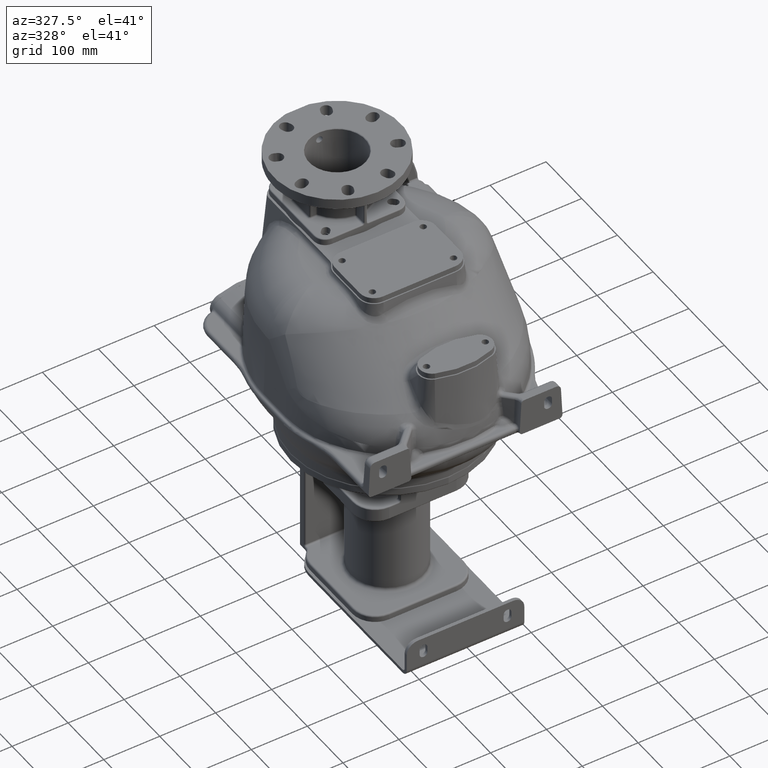
[diagram: clean part render]
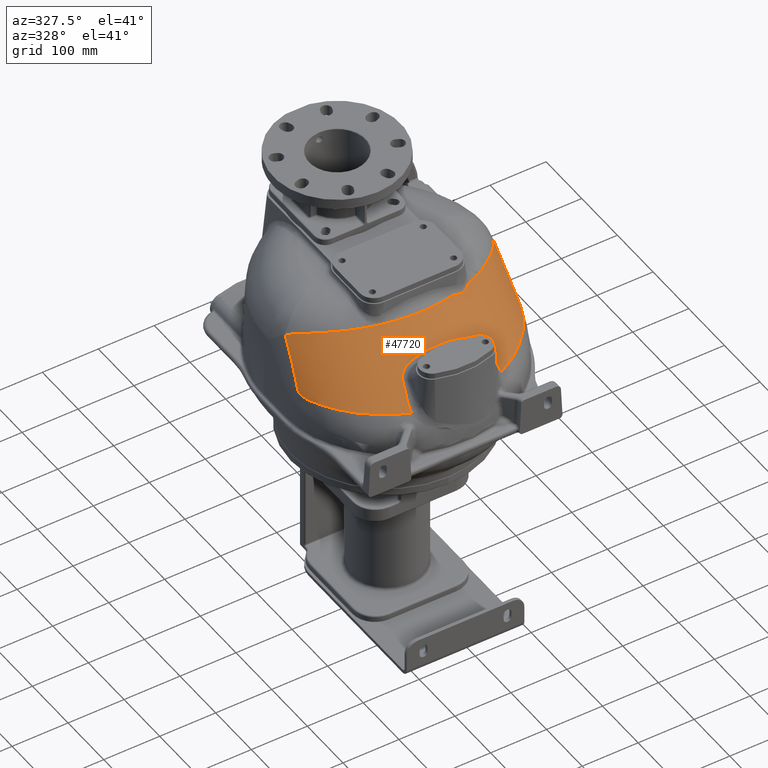
[diagram: same view with one face highlighted and labeled with its STEP entity id]
A machine part, auxiliary view. The second image highlights one B-rep face of the part: STEP entity #47720.
In plain terms, the highlighted face is a SurfaceOfExtrusion surface.
Its self-contained STEP definition (entity closure, byte-faithful):
#12614=CARTESIAN_POINT('',(-4.330793040691E1,5.269792538880E1,
3.894829784975E1));
#12697=CARTESIAN_POINT('',(2.354049095724E2,2.655411247039E2,1.046796360938E2));
#12698=CARTESIAN_POINT('',(2.341952911277E2,2.624349846678E2,1.061835365726E2));
#12699=CARTESIAN_POINT('',(2.313103218916E2,2.556278643053E2,1.092036920280E2));
#12700=CARTESIAN_POINT('',(2.252428511276E2,2.444873110225E2,1.142380757694E2));
#12701=CARTESIAN_POINT('',(2.171855143271E2,2.323897752123E2,1.190961902192E2));
#12702=CARTESIAN_POINT('',(2.072578235522E2,2.197692211890E2,1.233576562142E2));
#12703=CARTESIAN_POINT('',(1.955855274808E2,2.074124018436E2,1.272924040654E2));
#12704=CARTESIAN_POINT('',(1.821177484183E2,1.953615090553E2,1.306828517420E2));
#12705=CARTESIAN_POINT('',(1.672456618023E2,1.840211426404E2,1.334183521529E2));
#12706=CARTESIAN_POINT('',(1.494064886521E2,1.726442142024E2,1.359509156367E2));
#12707=CARTESIAN_POINT('',(1.347834457039E2,1.651763349081E2,1.374009542062E2));
#12708=CARTESIAN_POINT('',(1.270398941876E2,1.617612326784E2,1.380438431355E2));
#12710=CARTESIAN_POINT('',(2.403456481725E2,2.555571718179E2,7.018799807427E1));
#12711=CARTESIAN_POINT('',(2.403573231207E2,2.560436740533E2,7.059285675649E1));
#12712=CARTESIAN_POINT('',(2.403606888328E2,2.569946607360E2,7.152012690575E1));
#12713=CARTESIAN_POINT('',(2.402933340313E2,2.583451058563E2,7.334224865569E1));
#12714=CARTESIAN_POINT('',(2.401538399150E2,2.595388394756E2,7.548989233552E1));
#12715=CARTESIAN_POINT('',(2.399538736037E2,2.606715700106E2,7.794638437836E1));
#12716=CARTESIAN_POINT('',(2.396524214748E2,2.616000584730E2,8.078405981539E1));
#12717=CARTESIAN_POINT('',(2.392301789809E2,2.622947973458E2,8.398721961591E1));
#12718=CARTESIAN_POINT('',(2.386872500639E2,2.628198561910E2,8.749300430039E1));
#12719=CARTESIAN_POINT('',(2.380447536423E2,2.633766951107E2,9.129244856049E1));
#12720=CARTESIAN_POINT('',(2.373081829025E2,2.640415788200E2,9.539122219879E1));
#12721=CARTESIAN_POINT('',(2.364327212946E2,2.647021968633E2,9.981895904196E1));
#12722=CARTESIAN_POINT('',(2.357604812785E2,2.652378211154E2,1.030211975657E2));
#12723=CARTESIAN_POINT('',(2.354049095724E2,2.655411247039E2,1.046796360938E2));
#12725=CARTESIAN_POINT('',(1.206630588015E2,5.935095692017E1,3.883885427940E1));
#12726=CARTESIAN_POINT('',(1.284206497381E2,6.303687822916E1,3.878980001829E1));
#12727=CARTESIAN_POINT('',(1.428932829666E2,7.113255778590E1,3.871461399734E1));
#12728=CARTESIAN_POINT('',(1.604543662554E2,8.349361780553E1,3.845993988203E1));
#12729=CARTESIAN_POINT('',(1.748424694460E2,9.582166936495E1,3.824264474816E1));
#12730=CARTESIAN_POINT('',(1.866325046802E2,1.074654721636E2,3.775451161953E1));
#12731=CARTESIAN_POINT('',(1.962564586848E2,1.184639577875E2,3.722036608610E1));
#12732=CARTESIAN_POINT('',(2.042049812328E2,1.286772606631E2,3.653125333414E1));
#12733=CARTESIAN_POINT('',(2.106845860944E2,1.381941569149E2,3.594986918500E1));
#12734=CARTESIAN_POINT('',(2.160258992191E2,1.469853879629E2,3.542684045500E1));
#12735=CARTESIAN_POINT('',(2.204791425670E2,1.550425238560E2,3.479491717918E1));
#12736=CARTESIAN_POINT('',(2.241480470801E2,1.624551709012E2,3.423973069760E1));
#12737=CARTESIAN_POINT('',(2.272223032249E2,1.692292878300E2,3.359120310151E1));
#12738=CARTESIAN_POINT('',(2.297236001973E2,1.754729424963E2,3.313490614468E1));
#12739=CARTESIAN_POINT('',(2.317588641824E2,1.812179844996E2,3.288258925487E1));
#12740=CARTESIAN_POINT('',(2.334082764040E2,1.865025062642E2,3.284224347427E1));
#12741=CARTESIAN_POINT('',(2.346894325464E2,1.913181906323E2,3.316652904295E1));
#12742=CARTESIAN_POINT('',(2.356993535174E2,1.956222085812E2,3.366614187029E1));
#12743=CARTESIAN_POINT('',(2.364974556732E2,1.994978416948E2,3.432287383319E1));
#12744=CARTESIAN_POINT('',(2.370844733840E2,2.029048477606E2,3.521237067854E1));
#12745=CARTESIAN_POINT('',(2.374554326353E2,2.058065406452E2,3.645219118320E1));
#12746=CARTESIAN_POINT('',(2.377843360771E2,2.091272985648E2,3.825130266061E1));
#12747=CARTESIAN_POINT('',(2.380721025647E2,2.126771045631E2,4.042322147144E1));
#12748=CARTESIAN_POINT('',(2.383592749128E2,2.165140423627E2,4.284176642291E1));
#12749=CARTESIAN_POINT('',(2.386899362767E2,2.207876410198E2,4.541764868247E1));
#12750=CARTESIAN_POINT('',(2.390396909403E2,2.254420838383E2,4.818644693770E1));
#12751=CARTESIAN_POINT('',(2.393755415020E2,2.304973281159E2,5.133136661561E1));
#12752=CARTESIAN_POINT('',(2.396818128142E2,2.359954601885E2,5.499075538280E1));
#12753=CARTESIAN_POINT('',(2.399455279331E2,2.419805989591E2,5.930860240794E1));
#12754=CARTESIAN_POINT('',(2.401583599067E2,2.484424799117E2,6.436607331545E1));
#12755=CARTESIAN_POINT('',(2.402877480411E2,2.531302981047E2,6.816594226485E1));
#12756=CARTESIAN_POINT('',(2.403456481725E2,2.555571718179E2,7.018799807427E1));
#12758=CARTESIAN_POINT('',(1.206630588015E2,5.935095692017E1,3.883885427940E1));
#12759=CARTESIAN_POINT('',(1.206921145271E2,6.025158057541E1,3.972550088868E1));
#12760=CARTESIAN_POINT('',(1.206257993812E2,6.207794756711E1,4.158382473456E1));
#12761=CARTESIAN_POINT('',(1.201473792668E2,6.490410183753E1,4.463990353816E1));
#12762=CARTESIAN_POINT('',(1.195998906942E2,6.682958624371E1,4.682588686175E1));
#12763=CARTESIAN_POINT('',(1.1928587E2,6.781258839596E1,4.795732024050E1));
#12765=CARTESIAN_POINT('',(1.1928587E2,6.781258839596E1,4.795732024050E1));
#12766=CARTESIAN_POINT('',(1.185489789154E2,7.012125778546E1,5.061411889464E1));
#12767=CARTESIAN_POINT('',(1.171097192380E2,7.465850288234E1,5.582041747929E1));
#12768=CARTESIAN_POINT('',(1.152354845158E2,8.131440108578E1,6.332265618392E1));
#12769=CARTESIAN_POINT('',(1.142945202409E2,8.563455364962E1,6.805771041203E1));
#12770=CARTESIAN_POINT('',(1.139198078380E2,8.777296339332E1,7.036033439793E1));
#12772=CARTESIAN_POINT('',(1.139198078380E2,8.777296339332E1,7.036033439793E1));
#12773=CARTESIAN_POINT('',(1.136742205425E2,8.917431609496E1,7.186932554306E1));
#12774=CARTESIAN_POINT('',(1.128192565696E2,9.174686455492E1,7.481583977755E1));
#12775=CARTESIAN_POINT('',(1.105639590104E2,9.494391108950E1,7.897469540695E1));
#12776=CARTESIAN_POINT('',(1.073061829838E2,9.760146755205E1,8.296714088832E1));
#12777=CARTESIAN_POINT('',(1.029540174377E2,9.972124696182E1,8.677350012534E1));
#12778=CARTESIAN_POINT('',(9.733604506070E1,1.012480672912E2,9.031486646807E1));
#12779=CARTESIAN_POINT('',(9.282214043337E1,1.017795247099E2,9.230736565285E1));
#12780=CARTESIAN_POINT('',(9.034276424315E1,1.019059891427E2,9.318196966542E1));
#12782=CARTESIAN_POINT('',(9.034276424315E1,1.019059891427E2,9.318196966542E1));
#12783=CARTESIAN_POINT('',(8.429492950793E1,1.022143581314E2,9.531524295902E1));
#12784=CARTESIAN_POINT('',(7.224132316175E1,1.026434454025E2,9.877861197740E1));
#12785=CARTESIAN_POINT('',(5.466561107647E1,1.028524627969E2,1.018066334496E2));
#12786=CARTESIAN_POINT('',(3.738975945298E1,1.027086413977E2,1.029555438831E2));
#12787=CARTESIAN_POINT('',(2.026019732196E1,1.022353385259E2,1.023267294458E2));
#12788=CARTESIAN_POINT('',(3.063297611874E0,1.014200695514E2,9.991195576830E1));
#12789=CARTESIAN_POINT('',(-8.802321808456E0,1.005632062394E2,
9.691551688336E1));
#12790=CARTESIAN_POINT('',(-1.474081360276E1,1.000437205505E2,
9.504423825687E1));
#12792=CARTESIAN_POINT('',(-1.474081360276E1,1.000437205505E2,
9.504423825687E1));
#12793=CARTESIAN_POINT('',(-1.718184524100E1,9.982889649304E1,
9.427376358678E1));
#12794=CARTESIAN_POINT('',(-2.163417368152E1,9.914290046326E1,
9.248202328428E1));
#12795=CARTESIAN_POINT('',(-2.720385002854E1,9.743467559097E1,
8.920549197032E1));
#12796=CARTESIAN_POINT('',(-3.153553351251E1,9.518487547565E1,
8.561572533380E1));
#12797=CARTESIAN_POINT('',(-3.479262360060E1,9.243914119246E1,
8.179284762949E1));
#12798=CARTESIAN_POINT('',(-3.705568009274E1,8.919202922708E1,
7.776088304781E1));
#12799=CARTESIAN_POINT('',(-3.791588431042E1,8.661884328706E1,
7.488030588636E1));
#12800=CARTESIAN_POINT('',(-3.816437534547E1,8.522557831102E1,
7.339802564713E1));
#12802=CARTESIAN_POINT('',(-3.816437534547E1,8.522557831102E1,
7.339802564713E1));
#12803=CARTESIAN_POINT('',(-3.851346983104E1,8.326791424679E1,
7.131532585744E1));
#12804=CARTESIAN_POINT('',(-3.936031121811E1,7.931614511345E1,
6.705807624734E1));
#12805=CARTESIAN_POINT('',(-4.095902655204E1,7.324304152773E1,
6.039405879200E1));
#12806=CARTESIAN_POINT('',(-4.213872496868E1,6.909697019751E1,
5.579947823836E1));
#12807=CARTESIAN_POINT('',(-4.272950974531E1,6.698856208820E1,
5.346313215269E1));
#12809=CARTESIAN_POINT('',(-4.272950974531E1,6.698856208820E1,
5.346313215269E1));
#12810=CARTESIAN_POINT('',(-4.315624274789E1,6.546548953748E1,
5.177543160385E1));
#12811=CARTESIAN_POINT('',(-4.375703140779E1,6.237361271784E1,
4.844867849852E1));
#12812=CARTESIAN_POINT('',(-4.393223605380E1,5.742820746043E1,
4.343423470675E1));
#12813=CARTESIAN_POINT('',(-4.358408111454E1,5.426918620003E1,
4.041202913075E1));
#12814=CARTESIAN_POINT('',(-4.330793040691E1,5.269792538880E1,
3.894829784975E1));
#12816=CARTESIAN_POINT('',(-1.614017426234E2,1.890986014203E2,
4.520635427036E1));
#12817=CARTESIAN_POINT('',(-1.615288203693E2,1.885123326269E2,
4.415391228091E1));
#12818=CARTESIAN_POINT('',(-1.617033680343E2,1.872749555819E2,
4.226341754236E1));
#12819=CARTESIAN_POINT('',(-1.617371437509E2,1.851736278024E2,
4.003427339194E1));
#12820=CARTESIAN_POINT('',(-1.615893276357E2,1.830585773640E2,
3.847518603649E1));
#12821=CARTESIAN_POINT('',(-1.613067360780E2,1.808491187067E2,
3.731014338258E1));
#12822=CARTESIAN_POINT('',(-1.608469302295E2,1.782622964050E2,
3.637606101950E1));
#12823=CARTESIAN_POINT('',(-1.601711622725E2,1.752491385845E2,
3.569344380103E1));
#12824=CARTESIAN_POINT('',(-1.592653558749E2,1.718706652940E2,
3.527577757026E1));
#12825=CARTESIAN_POINT('',(-1.581197948604E2,1.681646506961E2,
3.508658729349E1));
#12826=CARTESIAN_POINT('',(-1.567163651043E2,1.641491582646E2,
3.508932467571E1));
#12827=CARTESIAN_POINT('',(-1.550381928901E2,1.598174897894E2,
3.521772590018E1));
#12828=CARTESIAN_POINT('',(-1.530377291114E2,1.551656660936E2,
3.547989839304E1));
#12829=CARTESIAN_POINT('',(-1.506896999904E2,1.501690216516E2,
3.579670090282E1));
#12830=CARTESIAN_POINT('',(-1.479323925781E2,1.448136061997E2,
3.617063862887E1));
#12831=CARTESIAN_POINT('',(-1.447437689880E2,1.390599039887E2,
3.649120278296E1));
#12832=CARTESIAN_POINT('',(-1.410329726976E2,1.328967404753E2,
3.679989696309E1));
#12833=CARTESIAN_POINT('',(-1.367161146709E2,1.263087689865E2,
3.708593986782E1));
#12834=CARTESIAN_POINT('',(-1.316863394657E2,1.192885872770E2,
3.735484555986E1));
#12835=CARTESIAN_POINT('',(-1.258172184914E2,1.118372829647E2,
3.760942852286E1));
#12836=CARTESIAN_POINT('',(-1.189612713214E2,1.039651966032E2,
3.784708753947E1));
#12837=CARTESIAN_POINT('',(-1.109282752377E2,9.570395685943E1,
3.808242362666E1));
#12838=CARTESIAN_POINT('',(-1.014881485729E2,8.711901567223E1,
3.833001129298E1));
#12839=CARTESIAN_POINT('',(-9.038767655942E1,7.831632599131E1,
3.857315577079E1));
#12840=CARTESIAN_POINT('',(-7.732640014443E1,6.942808464472E1,
3.876836055068E1));
#12841=CARTESIAN_POINT('',(-6.195876942802E1,6.073169265223E1,
3.892780249823E1));
#12842=CARTESIAN_POINT('',(-4.984005313277E1,5.524282776100E1,
3.894965944474E1));
#12843=CARTESIAN_POINT('',(-4.330793040691E1,5.269792538880E1,
3.894829784975E1));
#12845=CARTESIAN_POINT('',(-1.537361269370E2,2.349541265056E2,
1.135303253978E2));
#12846=CARTESIAN_POINT('',(-1.545768089432E2,2.288907225400E2,
1.054314351523E2));
#12847=CARTESIAN_POINT('',(-1.562627385482E2,2.173477647599E2,
8.960606019950E1));
#12848=CARTESIAN_POINT('',(-1.588119261746E2,2.018853966670E2,
6.686502035880E1));
#12849=CARTESIAN_POINT('',(-1.605383785071E2,1.930693076340E2,
5.234420323722E1));
#12850=CARTESIAN_POINT('',(-1.614017426234E2,1.890986014203E2,
4.520635427036E1));
#12852=CARTESIAN_POINT('',(9.348022613443E1,1.498799592167E2,1.401822419273E2));
#12853=CARTESIAN_POINT('',(8.333548152724E1,1.471139116795E2,1.406522123283E2));
#12854=CARTESIAN_POINT('',(6.274162326728E1,1.429284171957E2,1.413336934389E2));
#12855=CARTESIAN_POINT('',(3.131864338725E1,1.407656359539E2,1.416784544085E2));
#12856=CARTESIAN_POINT('',(2.468402786373E-1,1.427241977363E2,
1.413627667604E2));
#12857=CARTESIAN_POINT('',(-3.073388708175E1,1.488285757003E2,
1.403698461896E2));
#12858=CARTESIAN_POINT('',(-5.992435208643E1,1.587508015801E2,
1.385401236160E2));
#12859=CARTESIAN_POINT('',(-8.621319887879E1,1.716879875611E2,
1.357639428243E2));
#12860=CARTESIAN_POINT('',(-1.101280101369E2,1.877084084538E2,
1.317731233878E2));
#12861=CARTESIAN_POINT('',(-1.290752071793E2,2.043253624036E2,
1.268095869247E2));
#12862=CARTESIAN_POINT('',(-1.435219031923E2,2.202222557746E2,
1.208789073681E2));
#12863=CARTESIAN_POINT('',(-1.507271653538E2,2.301926209656E2,
1.160544325365E2));
#12864=CARTESIAN_POINT('',(-1.537361269370E2,2.349541265056E2,
1.135303253978E2));
#12866=CARTESIAN_POINT('',(9.348022613443E1,1.498799592167E2,1.401822419273E2));
#12867=CARTESIAN_POINT('',(9.400941641293E1,1.498564706759E2,1.399899495449E2));
#12868=CARTESIAN_POINT('',(9.506847427974E1,1.498087951317E2,1.395998025757E2));
#12869=CARTESIAN_POINT('',(9.665894161151E1,1.497351663639E2,1.389977785927E2));
#12870=CARTESIAN_POINT('',(9.772040344242E1,1.496846613995E2,1.385851472720E2));
#12871=CARTESIAN_POINT('',(9.825139567973E1,1.496590489866E2,1.383759917574E2));
#12873=CARTESIAN_POINT('',(9.825139567973E1,1.496590489866E2,1.383759917574E2));
#12874=CARTESIAN_POINT('',(1.000648968098E2,1.495740353388E2,1.376646612149E2));
#12875=CARTESIAN_POINT('',(1.036891268806E2,1.496343257157E2,1.364173353539E2));
#12876=CARTESIAN_POINT('',(1.093574077796E2,1.506911788407E2,1.352453724962E2));
#12877=CARTESIAN_POINT('',(1.147630652048E2,1.526132583965E2,1.348576165152E2));
#12878=CARTESIAN_POINT('',(1.197404735670E2,1.553216157312E2,1.352734433842E2));
#12879=CARTESIAN_POINT('',(1.237935947261E2,1.583855067011E2,1.363485110271E2));
#12880=CARTESIAN_POINT('',(1.260302819079E2,1.606125208371E2,1.374242097048E2));
#12881=CARTESIAN_POINT('',(1.270398941876E2,1.617612326784E2,1.380438431355E2));
#17563=VERTEX_POINT('',#12845);
#17564=VERTEX_POINT('',#12850);
#17567=VERTEX_POINT('',#12710);
#17568=VERTEX_POINT('',#12723);
#17569=VERTEX_POINT('',#12614);
#17573=VERTEX_POINT('',#12809);
#17575=VERTEX_POINT('',#12758);
#17576=VERTEX_POINT('',#12763);
#17585=VERTEX_POINT('',#12708);
#17586=VERTEX_POINT('',#12852);
#17587=VERTEX_POINT('',#12802);
#17589=VERTEX_POINT('',#12792);
#17591=VERTEX_POINT('',#12782);
#17593=VERTEX_POINT('',#12772);
#17602=VERTEX_POINT('',#12873);
#47665=CARTESIAN_POINT('',(2.408562703257E2,2.047679920493E2,1.56E1));
#47666=CARTESIAN_POINT('',(2.406132346830E2,2.028346310365E2,1.56E1));
#47667=CARTESIAN_POINT('',(2.398343234172E2,1.972287583527E2,1.56E1));
#47668=CARTESIAN_POINT('',(2.380961805722E2,1.873195096595E2,1.56E1));
#47669=CARTESIAN_POINT('',(2.347442444647E2,1.733093057519E2,1.56E1));
#47670=CARTESIAN_POINT('',(2.294995432742E2,1.566186009340E2,1.56E1));
#47671=CARTESIAN_POINT('',(2.217596016761E2,1.378111025307E2,1.56E1));
#47672=CARTESIAN_POINT('',(2.105248224052E2,1.168157975869E2,1.56E1));
#47673=CARTESIAN_POINT('',(1.945993911356E2,9.385445315231E1,1.56E1));
#47674=CARTESIAN_POINT('',(1.758795115502E2,7.366990211554E1,1.56E1));
#47675=CARTESIAN_POINT('',(1.560293195576E2,5.722450331938E1,1.56E1));
#47676=CARTESIAN_POINT('',(1.389220072918E2,4.561994021155E1,1.56E1));
#47677=CARTESIAN_POINT('',(1.196144554217E2,3.519367580432E1,1.56E1));
#47678=CARTESIAN_POINT('',(9.289312280678E1,2.418641038435E1,1.56E1));
#47679=CARTESIAN_POINT('',(5.786370493319E1,1.582665154653E1,1.56E1));
#47680=CARTESIAN_POINT('',(1.529143811213E1,1.457675116960E1,1.56E1));
#47681=CARTESIAN_POINT('',(-2.686912962887E1,2.221938682361E1,1.56E1));
#47682=CARTESIAN_POINT('',(-6.607884099928E1,3.820546565597E1,1.56E1));
#47683=CARTESIAN_POINT('',(-1.008679889213E2,6.209539651676E1,1.56E1));
#47684=CARTESIAN_POINT('',(-1.299047219920E2,9.279259135763E1,1.56E1));
#47685=CARTESIAN_POINT('',(-1.511488582696E2,1.276914244678E2,1.56E1));
#47686=CARTESIAN_POINT('',(-1.599087218016E2,1.528512867102E2,1.56E1));
#47687=CARTESIAN_POINT('',(-1.628790981538E2,1.652666116742E2,1.56E1));
#47689=DIRECTION('',(0.E0,7.071067811865E-1,7.071067811865E-1));
#47690=VECTOR('',#47689,1.E0);
#47691=SURFACE_OF_LINEAR_EXTRUSION('',#47688,#47690);
#47693=ORIENTED_EDGE('',*,*,#47692,.F.);
#47694=ORIENTED_EDGE('',*,*,#45173,.F.);
#47695=ORIENTED_EDGE('',*,*,#45592,.F.);
#47697=ORIENTED_EDGE('',*,*,#47696,.T.);
#47699=ORIENTED_EDGE('',*,*,#47698,.T.);
#47701=ORIENTED_EDGE('',*,*,#47700,.T.);
#47703=ORIENTED_EDGE('',*,*,#47702,.T.);
#47705=ORIENTED_EDGE('',*,*,#47704,.T.);
#47707=ORIENTED_EDGE('',*,*,#47706,.T.);
#47709=ORIENTED_EDGE('',*,*,#47708,.T.);
#47710=ORIENTED_EDGE('',*,*,#47603,.F.);
#47711=ORIENTED_EDGE('',*,*,#47656,.F.);
#47713=ORIENTED_EDGE('',*,*,#47712,.F.);
#47715=ORIENTED_EDGE('',*,*,#47714,.T.);
#47717=ORIENTED_EDGE('',*,*,#47716,.T.);
#47718=EDGE_LOOP('',(#47693,#47694,#47695,#47697,#47699,#47701,#47703,#47705,
#47707,#47709,#47710,#47711,#47713,#47715,#47717));
#47719=FACE_OUTER_BOUND('',#47718,.F.);
#47720=ADVANCED_FACE('',(#47719),#47691,.F.);
#12709=B_SPLINE_CURVE_WITH_KNOTS('',3,(#12697,#12698,#12699,#12700,#12701,
#12702,#12703,#12704,#12705,#12706,#12707,#12708),.UNSPECIFIED.,.F.,.F.,(4,1,1,
1,1,1,1,1,1,4),(0.E0,1.111111111111E-1,2.222222222222E-1,3.333333333333E-1,
4.444444444444E-1,5.555555555556E-1,6.666666666667E-1,7.777777777778E-1,
8.888888888889E-1,1.E0),.UNSPECIFIED.);
#12724=B_SPLINE_CURVE_WITH_KNOTS('',3,(#12710,#12711,#12712,#12713,#12714,
#12715,#12716,#12717,#12718,#12719,#12720,#12721,#12722,#12723),.UNSPECIFIED.,
.F.,.F.,(4,1,1,1,1,1,1,1,1,1,1,4),(0.E0,9.090909090909E-2,1.818181818182E-1,
2.727272727273E-1,3.636363636364E-1,4.545454545455E-1,5.454545454545E-1,
6.363636363636E-1,7.272727272727E-1,8.181818181818E-1,9.090909090909E-1,1.E0),
.UNSPECIFIED.);
#12757=B_SPLINE_CURVE_WITH_KNOTS('',3,(#12725,#12726,#12727,#12728,#12729,
#12730,#12731,#12732,#12733,#12734,#12735,#12736,#12737,#12738,#12739,#12740,
#12741,#12742,#12743,#12744,#12745,#12746,#12747,#12748,#12749,#12750,#12751,
#12752,#12753,#12754,#12755,#12756),.UNSPECIFIED.,.F.,.F.,(4,1,1,1,1,1,1,1,1,1,
1,1,1,1,1,1,1,1,1,1,1,1,1,1,1,1,1,1,1,4),(0.E0,3.448275862069E-2,
6.896551724138E-2,1.034482758621E-1,1.379310344828E-1,1.724137931034E-1,
2.068965517241E-1,2.413793103448E-1,2.758620689655E-1,3.103448275862E-1,
3.448275862069E-1,3.793103448276E-1,4.137931034483E-1,4.482758620690E-1,
4.827586206897E-1,5.172413793103E-1,5.517241379310E-1,5.862068965517E-1,
6.206896551724E-1,6.551724137931E-1,6.896551724138E-1,7.241379310345E-1,
7.586206896552E-1,7.931034482759E-1,8.275862068966E-1,8.620689655172E-1,
8.965517241379E-1,9.310344827586E-1,9.655172413793E-1,1.E0),.UNSPECIFIED.);
#12764=B_SPLINE_CURVE_WITH_KNOTS('',3,(#12758,#12759,#12760,#12761,#12762,
#12763),.UNSPECIFIED.,.F.,.F.,(4,1,1,4),(0.E0,3.333333333333E-1,
6.666666666667E-1,1.E0),.UNSPECIFIED.);
#12771=B_SPLINE_CURVE_WITH_KNOTS('',3,(#12765,#12766,#12767,#12768,#12769,
#12770),.UNSPECIFIED.,.F.,.F.,(4,1,1,4),(0.E0,3.333333333333E-1,
6.666666666667E-1,1.E0),.UNSPECIFIED.);
#12781=B_SPLINE_CURVE_WITH_KNOTS('',3,(#12772,#12773,#12774,#12775,#12776,
#12777,#12778,#12779,#12780),.UNSPECIFIED.,.F.,.F.,(4,1,1,1,1,1,4),(0.E0,
1.666666666667E-1,3.333333333333E-1,5.E-1,6.666666666667E-1,8.333333333333E-1,
1.E0),.UNSPECIFIED.);
#12791=B_SPLINE_CURVE_WITH_KNOTS('',3,(#12782,#12783,#12784,#12785,#12786,
#12787,#12788,#12789,#12790),.UNSPECIFIED.,.F.,.F.,(4,1,1,1,1,1,4),(0.E0,
1.666666666667E-1,3.333333333333E-1,5.E-1,6.666666666667E-1,8.333333333333E-1,
1.E0),.UNSPECIFIED.);
#12801=B_SPLINE_CURVE_WITH_KNOTS('',3,(#12792,#12793,#12794,#12795,#12796,
#12797,#12798,#12799,#12800),.UNSPECIFIED.,.F.,.F.,(4,1,1,1,1,1,4),(0.E0,
1.666666666667E-1,3.333333333333E-1,5.E-1,6.666666666667E-1,8.333333333333E-1,
1.E0),.UNSPECIFIED.);
#12808=B_SPLINE_CURVE_WITH_KNOTS('',3,(#12802,#12803,#12804,#12805,#12806,
#12807),.UNSPECIFIED.,.F.,.F.,(4,1,1,4),(0.E0,3.333333333333E-1,
6.666666666667E-1,1.E0),.UNSPECIFIED.);
#12815=B_SPLINE_CURVE_WITH_KNOTS('',3,(#12809,#12810,#12811,#12812,#12813,
#12814),.UNSPECIFIED.,.F.,.F.,(4,1,1,4),(0.E0,3.333333333333E-1,
6.666666666667E-1,1.E0),.UNSPECIFIED.);
#12844=B_SPLINE_CURVE_WITH_KNOTS('',3,(#12816,#12817,#12818,#12819,#12820,
#12821,#12822,#12823,#12824,#12825,#12826,#12827,#12828,#12829,#12830,#12831,
#12832,#12833,#12834,#12835,#12836,#12837,#12838,#12839,#12840,#12841,#12842,
#12843),.UNSPECIFIED.,.F.,.F.,(4,1,1,1,1,1,1,1,1,1,1,1,1,1,1,1,1,1,1,1,1,1,1,1,
1,4),(0.E0,4.E-2,8.E-2,1.2E-1,1.6E-1,2.E-1,2.4E-1,2.8E-1,3.2E-1,3.6E-1,4.E-1,
4.4E-1,4.8E-1,5.2E-1,5.6E-1,6.E-1,6.4E-1,6.8E-1,7.2E-1,7.6E-1,8.E-1,8.4E-1,
8.8E-1,9.2E-1,9.6E-1,1.E0),.UNSPECIFIED.);
#12851=B_SPLINE_CURVE_WITH_KNOTS('',3,(#12845,#12846,#12847,#12848,#12849,
#12850),.UNSPECIFIED.,.F.,.F.,(4,1,1,4),(0.E0,3.333333333333E-1,
6.666666666667E-1,1.E0),.UNSPECIFIED.);
#12865=B_SPLINE_CURVE_WITH_KNOTS('',3,(#12852,#12853,#12854,#12855,#12856,
#12857,#12858,#12859,#12860,#12861,#12862,#12863,#12864),.UNSPECIFIED.,.F.,.F.,(
4,1,1,1,1,1,1,1,1,1,4),(0.E0,1.E-1,2.E-1,3.E-1,4.E-1,5.E-1,6.E-1,7.E-1,8.E-1,
9.E-1,1.E0),.UNSPECIFIED.);
#12872=B_SPLINE_CURVE_WITH_KNOTS('',3,(#12866,#12867,#12868,#12869,#12870,
#12871),.UNSPECIFIED.,.F.,.F.,(4,1,1,4),(0.E0,3.333333333333E-1,
6.666666666667E-1,1.E0),.UNSPECIFIED.);
#12882=B_SPLINE_CURVE_WITH_KNOTS('',3,(#12873,#12874,#12875,#12876,#12877,
#12878,#12879,#12880,#12881),.UNSPECIFIED.,.F.,.F.,(4,1,1,1,1,1,4),(0.E0,
1.666666666667E-1,3.333333333333E-1,5.E-1,6.666666666667E-1,8.333333333333E-1,
1.E0),.UNSPECIFIED.);
#45173=EDGE_CURVE('',#17567,#17568,#12724,.T.);
#45592=EDGE_CURVE('',#17575,#17567,#12757,.T.);
#47603=EDGE_CURVE('',#17564,#17569,#12844,.T.);
#47656=EDGE_CURVE('',#17563,#17564,#12851,.T.);
#47688=B_SPLINE_CURVE_WITH_KNOTS('',3,(#47665,#47666,#47667,#47668,#47669,
#47670,#47671,#47672,#47673,#47674,#47675,#47676,#47677,#47678,#47679,#47680,
#47681,#47682,#47683,#47684,#47685,#47686,#47687),.UNSPECIFIED.,.F.,.F.,(4,1,1,
1,1,1,1,1,1,1,1,1,1,1,1,1,1,1,1,1,4),(0.E0,3.073316318822E-2,8.799783512716E-2,
1.452625070661E-1,2.025271790050E-1,2.597918509440E-1,3.170565228829E-1,
3.743211948219E-1,4.315858667608E-1,4.590729092915E-1,4.888505386998E-1,
5.163375812305E-1,5.461152106387E-1,6.033798825776E-1,6.606445545166E-1,
7.179092264555E-1,7.751738983945E-1,8.324385703334E-1,8.897032422724E-1,
9.469679142113E-1,1.E0),.UNSPECIFIED.);
#47692=EDGE_CURVE('',#17568,#17585,#12709,.T.);
#47696=EDGE_CURVE('',#17575,#17576,#12764,.T.);
#47698=EDGE_CURVE('',#17576,#17593,#12771,.T.);
#47700=EDGE_CURVE('',#17593,#17591,#12781,.T.);
#47702=EDGE_CURVE('',#17591,#17589,#12791,.T.);
#47704=EDGE_CURVE('',#17589,#17587,#12801,.T.);
#47706=EDGE_CURVE('',#17587,#17573,#12808,.T.);
#47708=EDGE_CURVE('',#17573,#17569,#12815,.T.);
#47712=EDGE_CURVE('',#17586,#17563,#12865,.T.);
#47714=EDGE_CURVE('',#17586,#17602,#12872,.T.);
#47716=EDGE_CURVE('',#17602,#17585,#12882,.T.);